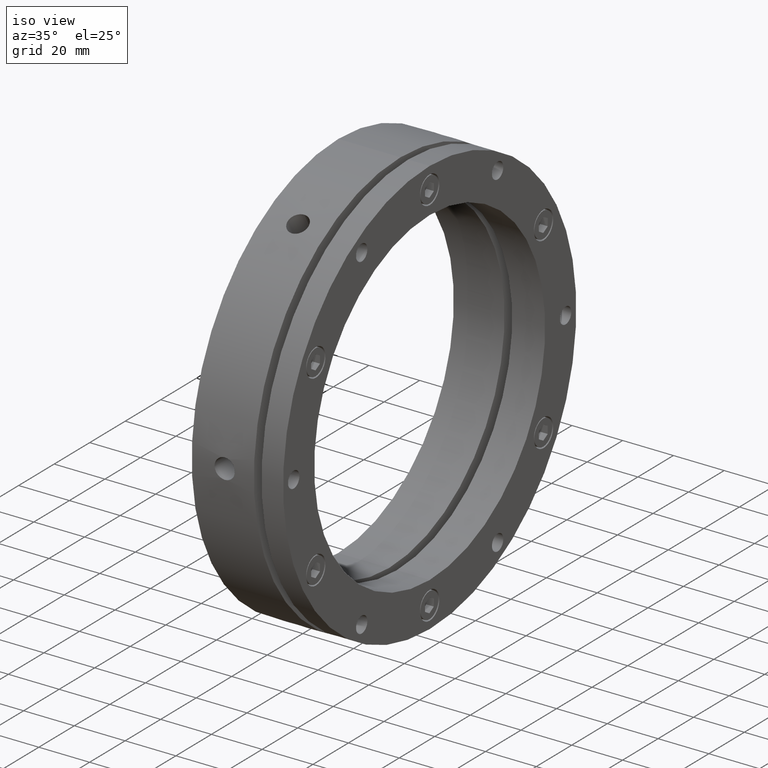
[diagram: clean part render]
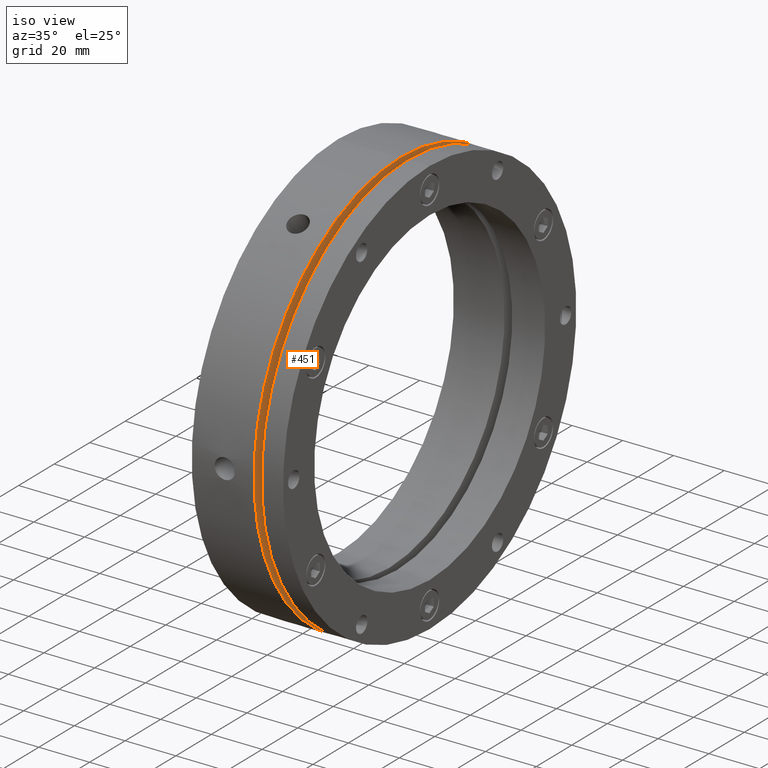
[diagram: same view with one face highlighted and labeled with its STEP entity id]
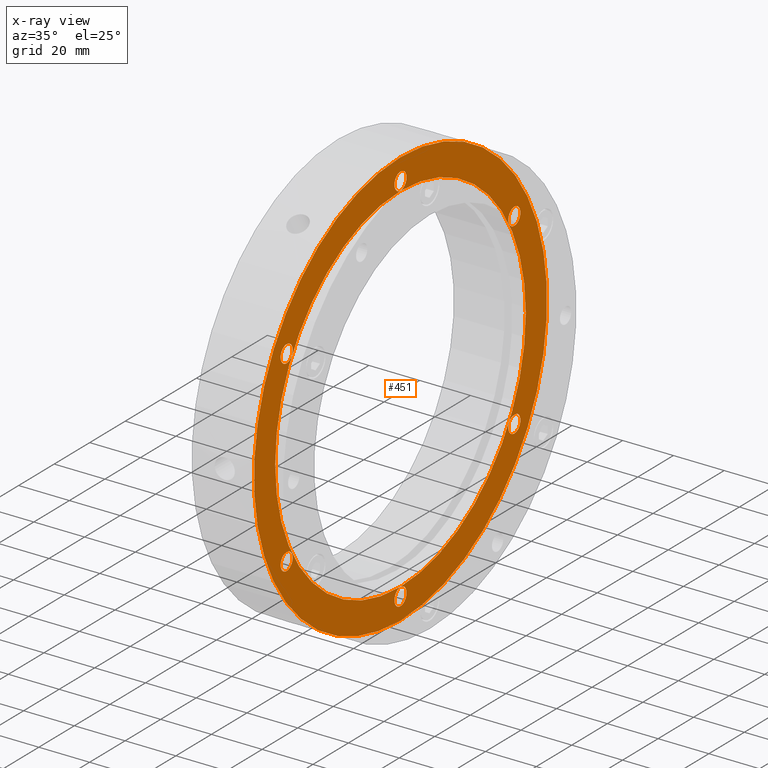
[diagram: x-ray of the same camera — body ghosted, the highlighted face saturated]
A machine part, iso view. The second image highlights one B-rep face of the part: STEP entity #451.
The next image is the same camera in x-ray: the body ghosted, the highlighted face saturated — about 0% of this face is hidden behind the body in this view.
In plain terms, the highlighted planar face has unit normal (-1, 0, 0).
Its self-contained STEP definition (entity closure, byte-faithful):
#45 = CIRCLE ( 'NONE', #2463, 82.50000000000000000 ) ;
#61 = CIRCLE ( 'NONE', #2466, 70.50000000000000000 ) ;
#62 = CIRCLE ( 'NONE', #2465, 3.400000000000000400 ) ;
#63 = CIRCLE ( 'NONE', #2464, 3.400000000000000400 ) ;
#64 = CIRCLE ( 'NONE', #2471, 3.400000000000000400 ) ;
#65 = CIRCLE ( 'NONE', #2470, 3.400000000000000400 ) ;
#66 = CIRCLE ( 'NONE', #2472, 3.400000000000000400 ) ;
#67 = CIRCLE ( 'NONE', #2469, 3.400000000000000400 ) ;
#123 = CIRCLE ( 'NONE', #2486, 82.50000000000000000 ) ;
#451 = ADVANCED_FACE ( 'NONE', ( #3369, #3361, #3365, #3367, #3363, #3360, #3359, #3358 ), #2895, .F. ) ;
#545 = CARTESIAN_POINT ( 'NONE',  ( 24.49999999999998600, 64.08587988004850900, 33.59999999999995200 ) ) ;
#546 = CARTESIAN_POINT ( 'NONE',  ( 24.49999999999998600, 64.08587988004850900, 40.39999999999994900 ) ) ;
#620 = CARTESIAN_POINT ( 'NONE',  ( 24.49999999999998600, 0.0000000000000000000, 0.0000000000000000000 ) ) ;
#621 = DIRECTION ( 'NONE',  ( 1.000000000000000000, -0.0000000000000000000, -0.0000000000000000000 ) ) ;
#622 = DIRECTION ( 'NONE',  ( 0.0000000000000000000, 0.0000000000000000000, 1.000000000000000000 ) ) ;
#630 = CARTESIAN_POINT ( 'NONE',  ( 24.49999999999998600, 0.0000000000000000000, 74.00000000000000000 ) ) ;
#631 = DIRECTION ( 'NONE',  ( 1.000000000000000000, 0.0000000000000000000, 0.0000000000000000000 ) ) ;
#632 = DIRECTION ( 'NONE',  ( 0.0000000000000000000, 0.0000000000000000000, -1.000000000000000000 ) ) ;
#640 = CARTESIAN_POINT ( 'NONE',  ( 24.49999999999998600, -64.08587988004845200, 37.00000000000001400 ) ) ;
#641 = DIRECTION ( 'NONE',  ( 1.000000000000000000, 0.0000000000000000000, 0.0000000000000000000 ) ) ;
#642 = DIRECTION ( 'NONE',  ( 0.0000000000000000000, 0.0000000000000000000, -1.000000000000000000 ) ) ;
#650 = CARTESIAN_POINT ( 'NONE',  ( 24.49999999999998600, -64.08587988004848100, -36.99999999999998600 ) ) ;
#651 = DIRECTION ( 'NONE',  ( 1.000000000000000000, 0.0000000000000000000, 0.0000000000000000000 ) ) ;
#652 = DIRECTION ( 'NONE',  ( 0.0000000000000000000, 0.0000000000000000000, -1.000000000000000000 ) ) ;
#660 = CARTESIAN_POINT ( 'NONE',  ( 24.49999999999998600, -1.332268000000000100E-014, -74.00000000000000000 ) ) ;
#661 = DIRECTION ( 'NONE',  ( 1.000000000000000000, 0.0000000000000000000, 0.0000000000000000000 ) ) ;
#662 = DIRECTION ( 'NONE',  ( 0.0000000000000000000, 0.0000000000000000000, -1.000000000000000000 ) ) ;
#670 = CARTESIAN_POINT ( 'NONE',  ( 24.49999999999998600, 64.08587988004843800, -37.00000000000003600 ) ) ;
#671 = DIRECTION ( 'NONE',  ( 1.000000000000000000, 0.0000000000000000000, 0.0000000000000000000 ) ) ;
#672 = DIRECTION ( 'NONE',  ( 0.0000000000000000000, 0.0000000000000000000, -1.000000000000000000 ) ) ;
#680 = CARTESIAN_POINT ( 'NONE',  ( 24.49999999999998600, 64.08587988004850900, 36.99999999999995000 ) ) ;
#681 = DIRECTION ( 'NONE',  ( 1.000000000000000000, 0.0000000000000000000, 0.0000000000000000000 ) ) ;
#682 = DIRECTION ( 'NONE',  ( 0.0000000000000000000, 0.0000000000000000000, -1.000000000000000000 ) ) ;
#1136 = CARTESIAN_POINT ( 'NONE',  ( 24.49999999999998600, 0.0000000000000000000, 0.0000000000000000000 ) ) ;
#1137 = DIRECTION ( 'NONE',  ( -1.000000000000000000, -0.0000000000000000000, -0.0000000000000000000 ) ) ;
#1138 = DIRECTION ( 'NONE',  ( 0.0000000000000000000, 0.0000000000000000000, -1.000000000000000000 ) ) ;
#1178 = CARTESIAN_POINT ( 'NONE',  ( 24.49999999999998600, 0.0000000000000000000, 0.0000000000000000000 ) ) ;
#1179 = DIRECTION ( 'NONE',  ( 1.000000000000000000, -0.0000000000000000000, -0.0000000000000000000 ) ) ;
#1180 = DIRECTION ( 'NONE',  ( 0.0000000000000000000, 0.0000000000000000000, 1.000000000000000000 ) ) ;
#1181 = CARTESIAN_POINT ( 'NONE',  ( 24.49999999999998600, 0.0000000000000000000, 74.00000000000000000 ) ) ;
#1182 = DIRECTION ( 'NONE',  ( 1.000000000000000000, 0.0000000000000000000, 0.0000000000000000000 ) ) ;
#1183 = DIRECTION ( 'NONE',  ( 0.0000000000000000000, 0.0000000000000000000, -1.000000000000000000 ) ) ;
#1184 = CARTESIAN_POINT ( 'NONE',  ( 24.49999999999998600, -64.08587988004845200, 37.00000000000001400 ) ) ;
#1185 = DIRECTION ( 'NONE',  ( 1.000000000000000000, 0.0000000000000000000, 0.0000000000000000000 ) ) ;
#1186 = DIRECTION ( 'NONE',  ( 0.0000000000000000000, 0.0000000000000000000, -1.000000000000000000 ) ) ;
#1187 = CARTESIAN_POINT ( 'NONE',  ( 24.49999999999998600, -64.08587988004848100, -36.99999999999998600 ) ) ;
#1188 = DIRECTION ( 'NONE',  ( 1.000000000000000000, 0.0000000000000000000, 0.0000000000000000000 ) ) ;
#1189 = DIRECTION ( 'NONE',  ( 0.0000000000000000000, 0.0000000000000000000, -1.000000000000000000 ) ) ;
#1190 = CARTESIAN_POINT ( 'NONE',  ( 24.49999999999998600, -1.332268000000000100E-014, -74.00000000000000000 ) ) ;
#1191 = DIRECTION ( 'NONE',  ( 1.000000000000000000, 0.0000000000000000000, 0.0000000000000000000 ) ) ;
#1192 = DIRECTION ( 'NONE',  ( 0.0000000000000000000, 0.0000000000000000000, -1.000000000000000000 ) ) ;
#1193 = CARTESIAN_POINT ( 'NONE',  ( 24.49999999999998600, 64.08587988004843800, -37.00000000000003600 ) ) ;
#1194 = DIRECTION ( 'NONE',  ( 1.000000000000000000, 0.0000000000000000000, 0.0000000000000000000 ) ) ;
#1195 = DIRECTION ( 'NONE',  ( 0.0000000000000000000, 0.0000000000000000000, -1.000000000000000000 ) ) ;
#1196 = CARTESIAN_POINT ( 'NONE',  ( 24.49999999999998600, 64.08587988004850900, 36.99999999999995000 ) ) ;
#1197 = DIRECTION ( 'NONE',  ( 1.000000000000000000, 0.0000000000000000000, 0.0000000000000000000 ) ) ;
#1198 = DIRECTION ( 'NONE',  ( 0.0000000000000000000, 0.0000000000000000000, -1.000000000000000000 ) ) ;
#1205 = CARTESIAN_POINT ( 'NONE',  ( 24.49999999999998600, 64.08587988004843800, -33.60000000000003000 ) ) ;
#1210 = CARTESIAN_POINT ( 'NONE',  ( 24.49999999999998600, 64.08587988004843800, -40.40000000000003400 ) ) ;
#1215 = CARTESIAN_POINT ( 'NONE',  ( 24.49999999999998600, -64.08587988004848100, -33.59999999999998700 ) ) ;
#1220 = CARTESIAN_POINT ( 'NONE',  ( 24.49999999999998600, -1.332268000000000100E-014, -77.39999999999999100 ) ) ;
#1222 = CARTESIAN_POINT ( 'NONE',  ( 24.49999999999998600, -1.290630008828990200E-014, -70.59999999999999400 ) ) ;
#1224 = CARTESIAN_POINT ( 'NONE',  ( 24.49999999999998600, -64.08587988004848100, -40.39999999999998400 ) ) ;
#1226 = CARTESIAN_POINT ( 'NONE',  ( 24.49999999999998600, -64.08587988004845200, 33.60000000000000900 ) ) ;
#1227 = CARTESIAN_POINT ( 'NONE',  ( 24.49999999999998600, -64.08587988004845200, 40.40000000000001300 ) ) ;
#1230 = CARTESIAN_POINT ( 'NONE',  ( 24.49999999999998600, 0.0000000000000000000, 70.59999999999999400 ) ) ;
#1231 = CARTESIAN_POINT ( 'NONE',  ( 24.49999999999998600, 4.163799117101000100E-016, 77.39999999999999100 ) ) ;
#1234 = CARTESIAN_POINT ( 'NONE',  ( 24.49999999999998600, 0.0000000000000000000, 70.50000000000000000 ) ) ;
#1235 = CARTESIAN_POINT ( 'NONE',  ( 24.49999999999998600, 8.633759933988840600E-015, -70.50000000000000000 ) ) ;
#1278 = CARTESIAN_POINT ( 'NONE',  ( 24.49999999999998600, 1.010333609296566400E-014, 82.50000000000000000 ) ) ;
#1302 = CARTESIAN_POINT ( 'NONE',  ( 24.49999999999998600, 0.0000000000000000000, -82.50000000000000000 ) ) ;
#1612 = CARTESIAN_POINT ( 'NONE',  ( 24.49999999999998600, 0.0000000000000000000, 0.0000000000000000000 ) ) ;
#1613 = DIRECTION ( 'NONE',  ( -1.000000000000000000, -0.0000000000000000000, -0.0000000000000000000 ) ) ;
#1614 = DIRECTION ( 'NONE',  ( 0.0000000000000000000, 0.0000000000000000000, -1.000000000000000000 ) ) ;
#2383 = VERTEX_POINT ( 'NONE', #545 ) ;
#2384 = VERTEX_POINT ( 'NONE', #546 ) ;
#2463 = AXIS2_PLACEMENT_3D ( 'NONE', #1136, #1137, #1138 ) ;
#2464 = AXIS2_PLACEMENT_3D ( 'NONE', #1184, #1185, #1186 ) ;
#2465 = AXIS2_PLACEMENT_3D ( 'NONE', #1181, #1182, #1183 ) ;
#2466 = AXIS2_PLACEMENT_3D ( 'NONE', #1178, #1179, #1180 ) ;
#2469 = AXIS2_PLACEMENT_3D ( 'NONE', #1196, #1197, #1198 ) ;
#2470 = AXIS2_PLACEMENT_3D ( 'NONE', #1190, #1191, #1192 ) ;
#2471 = AXIS2_PLACEMENT_3D ( 'NONE', #1187, #1188, #1189 ) ;
#2472 = AXIS2_PLACEMENT_3D ( 'NONE', #1193, #1194, #1195 ) ;
#2486 = AXIS2_PLACEMENT_3D ( 'NONE', #1612, #1613, #1614 ) ;
#2540 = EDGE_CURVE ( 'NONE', #4009, #4008, #3885, .T. ) ;
#2544 = EDGE_CURVE ( 'NONE', #4005, #4004, #3880, .T. ) ;
#2548 = EDGE_CURVE ( 'NONE', #4001, #4000, #3874, .T. ) ;
#2552 = EDGE_CURVE ( 'NONE', #3997, #3996, #3868, .T. ) ;
#2556 = EDGE_CURVE ( 'NONE', #3993, #3992, #3862, .T. ) ;
#2560 = EDGE_CURVE ( 'NONE', #3974, #3969, #3856, .T. ) ;
#2564 = EDGE_CURVE ( 'NONE', #2384, #2383, #3850, .T. ) ;
#2887 = DIRECTION ( 'NONE',  ( -1.000000000000000000, 0.0000000000000000000, 0.0000000000000000000 ) ) ;
#2891 = CARTESIAN_POINT ( 'NONE',  ( 24.49999999999998600, 76.50000000000000000, 0.0000000000000000000 ) ) ;
#2895 = PLANE ( 'NONE',  #3697 ) ;
#2897 = DIRECTION ( 'NONE',  ( 0.0000000000000000000, 0.0000000000000000000, 1.000000000000000000 ) ) ;
#2991 = EDGE_CURVE ( 'NONE', #4077, #4053, #45, .T. ) ;
#3020 = EDGE_CURVE ( 'NONE', #4008, #4009, #61, .T. ) ;
#3022 = EDGE_CURVE ( 'NONE', #4004, #4005, #62, .T. ) ;
#3025 = EDGE_CURVE ( 'NONE', #4000, #4001, #63, .T. ) ;
#3027 = EDGE_CURVE ( 'NONE', #3996, #3997, #64, .T. ) ;
#3030 = EDGE_CURVE ( 'NONE', #3992, #3993, #65, .T. ) ;
#3032 = EDGE_CURVE ( 'NONE', #3969, #3974, #66, .T. ) ;
#3037 = EDGE_CURVE ( 'NONE', #2383, #2384, #67, .T. ) ;
#3358 = FACE_OUTER_BOUND ( 'NONE', #4397, .T. ) ;
#3359 = FACE_BOUND ( 'NONE', #4398, .T. ) ;
#3360 = FACE_BOUND ( 'NONE', #4399, .T. ) ;
#3361 = FACE_BOUND ( 'NONE', #4408, .T. ) ;
#3363 = FACE_BOUND ( 'NONE', #4400, .T. ) ;
#3365 = FACE_BOUND ( 'NONE', #4407, .T. ) ;
#3367 = FACE_BOUND ( 'NONE', #4420, .T. ) ;
#3369 = FACE_BOUND ( 'NONE', #4421, .T. ) ;
#3605 = AXIS2_PLACEMENT_3D ( 'NONE', #670, #671, #672 ) ;
#3662 = AXIS2_PLACEMENT_3D ( 'NONE', #680, #681, #682 ) ;
#3697 = AXIS2_PLACEMENT_3D ( 'NONE', #2891, #2887, #2897 ) ;
#3725 = AXIS2_PLACEMENT_3D ( 'NONE', #620, #621, #622 ) ;
#3730 = AXIS2_PLACEMENT_3D ( 'NONE', #640, #641, #642 ) ;
#3732 = AXIS2_PLACEMENT_3D ( 'NONE', #650, #651, #652 ) ;
#3772 = AXIS2_PLACEMENT_3D ( 'NONE', #630, #631, #632 ) ;
#3774 = AXIS2_PLACEMENT_3D ( 'NONE', #660, #661, #662 ) ;
#3850 = CIRCLE ( 'NONE', #3662, 3.400000000000000400 ) ;
#3856 = CIRCLE ( 'NONE', #3605, 3.400000000000000400 ) ;
#3862 = CIRCLE ( 'NONE', #3774, 3.400000000000000400 ) ;
#3868 = CIRCLE ( 'NONE', #3732, 3.400000000000000400 ) ;
#3874 = CIRCLE ( 'NONE', #3730, 3.400000000000000400 ) ;
#3880 = CIRCLE ( 'NONE', #3772, 3.400000000000000400 ) ;
#3885 = CIRCLE ( 'NONE', #3725, 70.50000000000000000 ) ;
#3969 = VERTEX_POINT ( 'NONE', #1210 ) ;
#3974 = VERTEX_POINT ( 'NONE', #1205 ) ;
#3992 = VERTEX_POINT ( 'NONE', #1220 ) ;
#3993 = VERTEX_POINT ( 'NONE', #1222 ) ;
#3996 = VERTEX_POINT ( 'NONE', #1224 ) ;
#3997 = VERTEX_POINT ( 'NONE', #1215 ) ;
#4000 = VERTEX_POINT ( 'NONE', #1226 ) ;
#4001 = VERTEX_POINT ( 'NONE', #1227 ) ;
#4004 = VERTEX_POINT ( 'NONE', #1230 ) ;
#4005 = VERTEX_POINT ( 'NONE', #1231 ) ;
#4008 = VERTEX_POINT ( 'NONE', #1234 ) ;
#4009 = VERTEX_POINT ( 'NONE', #1235 ) ;
#4053 = VERTEX_POINT ( 'NONE', #1278 ) ;
#4077 = VERTEX_POINT ( 'NONE', #1302 ) ;
#4210 = ORIENTED_EDGE ( 'NONE', *, *, #4584, .F. ) ;
#4211 = ORIENTED_EDGE ( 'NONE', *, *, #3022, .F. ) ;
#4213 = ORIENTED_EDGE ( 'NONE', *, *, #2560, .F. ) ;
#4214 = ORIENTED_EDGE ( 'NONE', *, *, #2540, .F. ) ;
#4216 = ORIENTED_EDGE ( 'NONE', *, *, #2991, .F. ) ;
#4222 = ORIENTED_EDGE ( 'NONE', *, *, #3020, .F. ) ;
#4236 = ORIENTED_EDGE ( 'NONE', *, *, #3037, .F. ) ;
#4243 = ORIENTED_EDGE ( 'NONE', *, *, #3030, .F. ) ;
#4245 = ORIENTED_EDGE ( 'NONE', *, *, #2548, .F. ) ;
#4307 = ORIENTED_EDGE ( 'NONE', *, *, #2556, .F. ) ;
#4309 = ORIENTED_EDGE ( 'NONE', *, *, #3027, .F. ) ;
#4310 = ORIENTED_EDGE ( 'NONE', *, *, #3025, .F. ) ;
#4313 = ORIENTED_EDGE ( 'NONE', *, *, #3032, .F. ) ;
#4314 = ORIENTED_EDGE ( 'NONE', *, *, #2552, .F. ) ;
#4397 = EDGE_LOOP ( 'NONE', ( #4216, #4210 ) ) ;
#4398 = EDGE_LOOP ( 'NONE', ( #4236, #4492 ) ) ;
#4399 = EDGE_LOOP ( 'NONE', ( #4313, #4213 ) ) ;
#4400 = EDGE_LOOP ( 'NONE', ( #4243, #4307 ) ) ;
#4407 = EDGE_LOOP ( 'NONE', ( #4310, #4245 ) ) ;
#4408 = EDGE_LOOP ( 'NONE', ( #4211, #4461 ) ) ;
#4420 = EDGE_LOOP ( 'NONE', ( #4309, #4314 ) ) ;
#4421 = EDGE_LOOP ( 'NONE', ( #4222, #4214 ) ) ;
#4461 = ORIENTED_EDGE ( 'NONE', *, *, #2544, .F. ) ;
#4492 = ORIENTED_EDGE ( 'NONE', *, *, #2564, .F. ) ;
#4584 = EDGE_CURVE ( 'NONE', #4053, #4077, #123, .T. ) ;